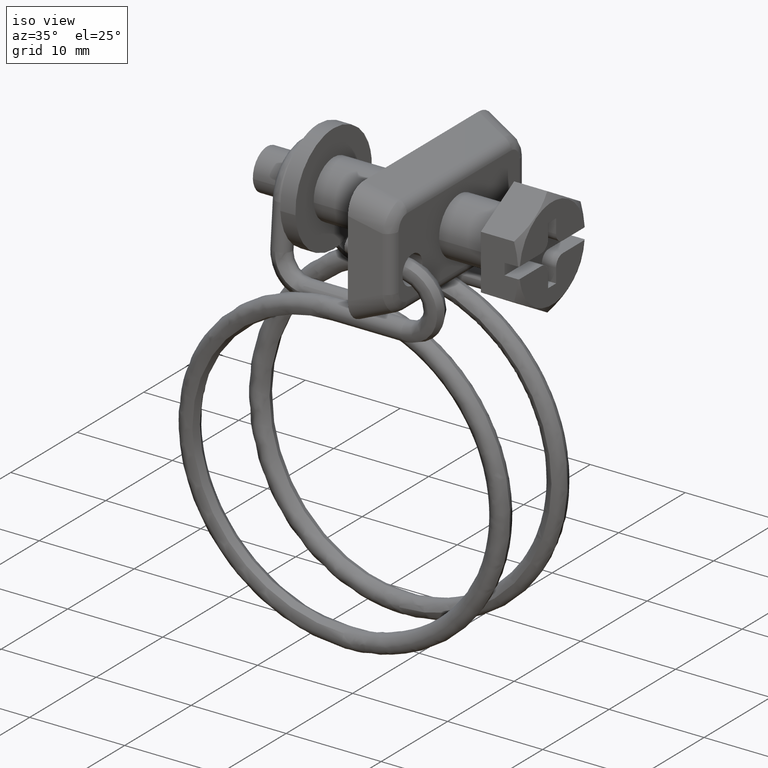
[diagram: clean part render]
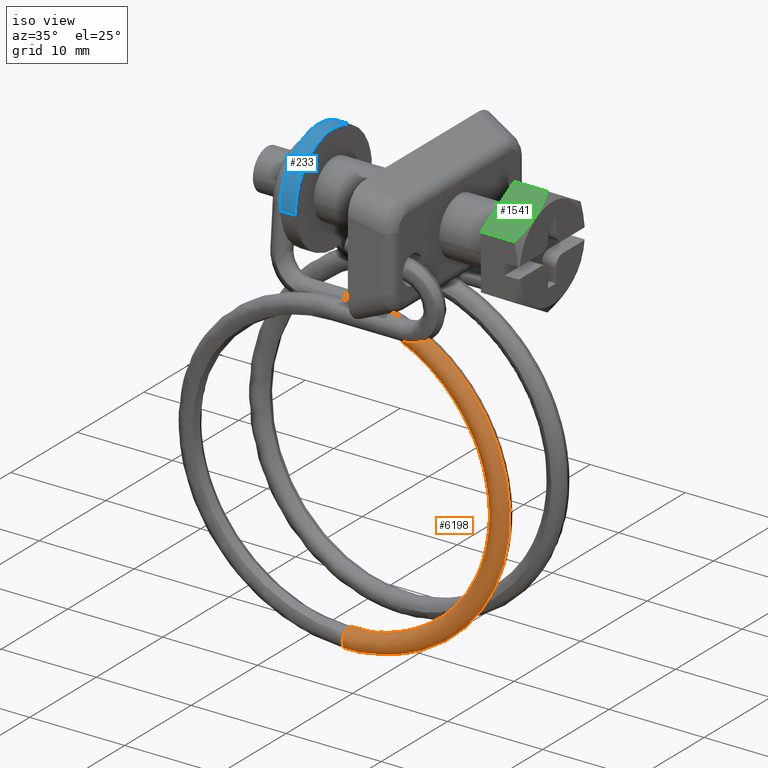
[diagram: same view with three faces highlighted in distinct colors, each labeled with its STEP entity id]
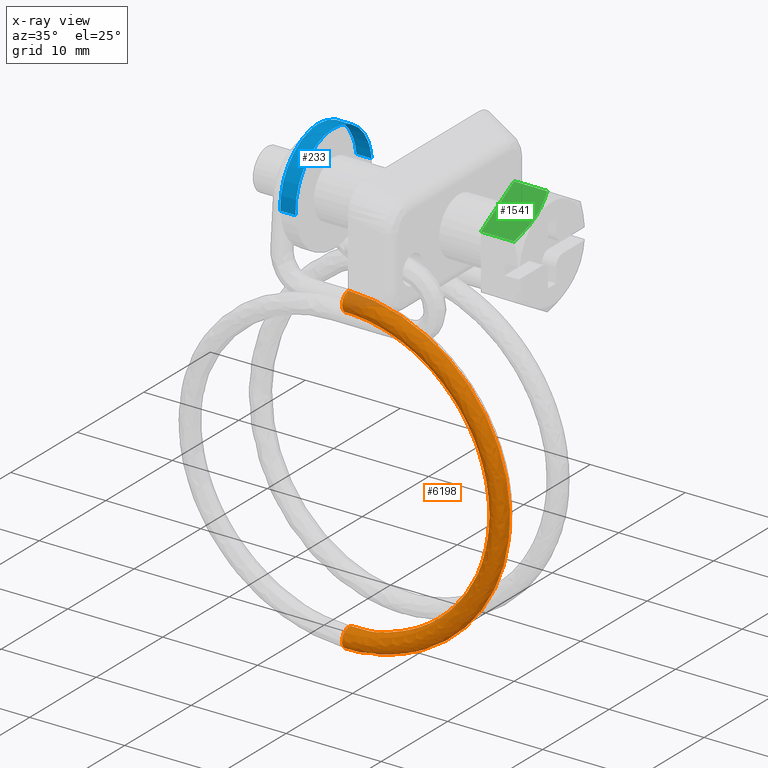
[diagram: x-ray of the same camera — body ghosted, the three highlighted faces saturated]
A machine part, iso view with three faces highlighted in distinct colors.
The next image is the same camera in x-ray (body ghosted, the three faces saturated) — at least one of them is partly hidden behind the body in this view.
Their STEP definitions:

[orange] entity #6198 — the highlighted face is a freeform B-spline surface patch.
#4757=CARTESIAN_POINT('',(-14.399997916668470,-4.300002000000000,-8.850001000000301));
#4758=VERTEX_POINT('',#4757);
#4759=CARTESIAN_POINT('',(-14.399997687572720,-5.060407965578165,-7.200552951688154));
#4760=VERTEX_POINT('',#4759);
#4761=CARTESIAN_POINT('',(-14.399997916668470,-4.300002000000000,-8.850001000000301));
#4762=CARTESIAN_POINT('',(-14.399997916668580,-5.300002000000001,-8.850001000000301));
#4763=CARTESIAN_POINT('',(-14.399997777779690,-5.300002000000000,-7.850001000000311));
#4764=CARTESIAN_POINT('',(-14.399997726540875,-5.300002000000000,-7.481081522918133));
#4765=CARTESIAN_POINT('',(-14.399997687572718,-5.060407965578166,-7.200552951688154));
#4773=(BOUNDED_CURVE()B_SPLINE_CURVE(2,(#4761,#4762,#4763,#4764,#4765),.UNSPECIFIED.,.F.,.U.)B_SPLINE_CURVE_WITH_KNOTS((3,2,3),(0.0,0.250000000000000,0.363143161342019),.UNSPECIFIED.)CURVE()GEOMETRIC_REPRESENTATION_ITEM()RATIONAL_B_SPLINE_CURVE((1.0,0.707106781186548,1.0,0.867444541151225,0.854871031640789))REPRESENTATION_ITEM(''));
#4774=EDGE_CURVE('',#4758,#4760,#4773,.T.);
#4830=CARTESIAN_POINT('',(-14.399997867980620,-3.539596034400177,-8.499449048330725));
#4831=VERTEX_POINT('',#4830);
#4837=CARTESIAN_POINT('',(-14.399997867980614,-3.539596034400176,-8.499449048330726));
#4838=CARTESIAN_POINT('',(-14.399997916668415,-3.838995685573063,-8.850001000000301));
#4839=CARTESIAN_POINT('',(-14.399997916668470,-4.300002000000000,-8.850001000000301));
#4847=(BOUNDED_CURVE()B_SPLINE_CURVE(2,(#4837,#4838,#4839),.UNSPECIFIED.,.F.,.U.)B_SPLINE_CURVE_WITH_KNOTS((3,3),(0.863143161349469,1.0),.UNSPECIFIED.)CURVE()GEOMETRIC_REPRESENTATION_ITEM()RATIONAL_B_SPLINE_CURVE((0.854871031639133,0.839662240044051,1.0))REPRESENTATION_ITEM(''));
#4848=EDGE_CURVE('',#4831,#4758,#4847,.T.);
#4871=CARTESIAN_POINT('',(-14.399997638877650,-4.312568040193890,-6.850079955800332));
#4872=VERTEX_POINT('',#4871);
#4873=CARTESIAN_POINT('',(-14.399997687572720,-5.060407965578166,-7.200552951688155));
#4874=CARTESIAN_POINT('',(-14.399997639680054,-4.765941928709835,-6.855777520302893));
#4875=CARTESIAN_POINT('',(-14.399997638877648,-4.312568040193890,-6.850079955800332));
#4883=(BOUNDED_CURVE()B_SPLINE_CURVE(2,(#4873,#4874,#4875),.UNSPECIFIED.,.F.,.U.)B_SPLINE_CURVE_WITH_KNOTS((3,3),(0.363143161342019,0.497784295812493),.UNSPECIFIED.)CURVE()GEOMETRIC_REPRESENTATION_ITEM()RATIONAL_B_SPLINE_CURVE((0.854871031640788,0.839908469479007,0.994854295392596))REPRESENTATION_ITEM(''));
#4884=EDGE_CURVE('',#4760,#4872,#4883,.T.);
#4901=CARTESIAN_POINT('',(-14.399997768017290,-3.302436326325196,-7.780267746055399));
#4902=VERTEX_POINT('',#4901);
#4916=CARTESIAN_POINT('',(-14.399997768017290,-3.302436326325196,-7.780267746055399));
#4917=CARTESIAN_POINT('',(-14.399997772930980,-3.300002000000000,-7.815091881747528));
#4918=CARTESIAN_POINT('',(-14.399997777779470,-3.300002000000000,-7.850001000000311));
#4919=CARTESIAN_POINT('',(-14.399997829018286,-3.300002000000000,-8.218920477110491));
#4920=CARTESIAN_POINT('',(-14.399997867980613,-3.539596034400177,-8.499449048330725));
#4928=(BOUNDED_CURVE()B_SPLINE_CURVE(2,(#4916,#4917,#4918,#4919,#4920),.UNSPECIFIED.,.F.,.U.)B_SPLINE_CURVE_WITH_KNOTS((3,2,3),(0.737833685718157,0.750000000000000,0.863143161349469),.UNSPECIFIED.)CURVE()GEOMETRIC_REPRESENTATION_ITEM()RATIONAL_B_SPLINE_CURVE((0.972879874659088,0.985746276195579,1.0,0.867444541142497,0.854871031639133))REPRESENTATION_ITEM(''));
#4929=EDGE_CURVE('',#4902,#4831,#4928,.T.);
#6070=CARTESIAN_POINT('',(-16.669655722496906,-3.302436322311034,-7.941355931714453));
#6071=CARTESIAN_POINT('',(1.669733196520374,-3.302436322311032,-5.324910670130045));
#6072=CARTESIAN_POINT('',(1.669733196520377,-3.302436322311033,-23.850001000000002));
#6073=CARTESIAN_POINT('',(1.669733196520381,-3.302436322311032,-42.375103440024269));
#6074=CARTESIAN_POINT('',(-16.669666017983559,-3.302436322311034,-39.758644599444942));
#6075=CARTESIAN_POINT('',(-16.665623397683881,-3.300440590111869,-7.969619612242979));
#6076=CARTESIAN_POINT('',(1.641183322958194,-3.300440590111871,-5.357822790087351));
#6077=CARTESIAN_POINT('',(1.641183322958197,-3.300440590111870,-23.850000999999999));
#6078=CARTESIAN_POINT('',(1.641183322958201,-3.300440590111871,-42.342191298551789));
#6079=CARTESIAN_POINT('',(-16.665633674879324,-3.300440590111870,-39.730380921525978));
#6080=CARTESIAN_POINT('',(-16.661581552091373,-3.300080955796185,-7.997950026549738));
#6081=CARTESIAN_POINT('',(1.612566039883342,-3.300080955796185,-5.390812619319354));
#6082=CARTESIAN_POINT('',(1.612566039883346,-3.300080955796184,-23.850000999999999));
#6083=CARTESIAN_POINT('',(1.612566039883349,-3.300080955796184,-42.309201447753793));
#6084=CARTESIAN_POINT('',(-16.661591810952423,-3.300080955796184,-39.702050509834947));
#6085=CARTESIAN_POINT('',(-16.520354781723235,-3.287514915912832,-8.987847543453903));
#6086=CARTESIAN_POINT('',(0.612644995679529,-3.287514915912832,-6.543515494972856));
#6087=CARTESIAN_POINT('',(0.612644995679531,-3.287514915912832,-23.850000999999999));
#6088=CARTESIAN_POINT('',(0.612644995679535,-3.287514915912831,-41.156497818559572));
#6089=CARTESIAN_POINT('',(-16.520364399959224,-3.287514915912831,-38.712153084327745));
#6090=CARTESIAN_POINT('',(-16.518579980363338,-4.287435960116648,-9.000287617347691));
#6091=CARTESIAN_POINT('',(0.600078955796178,-4.287435960116646,-6.558001549039905));
#6092=CARTESIAN_POINT('',(0.600078955796178,-4.287435960116647,-23.850000999999999));
#6093=CARTESIAN_POINT('',(0.600078955796182,-4.287435960116647,-41.142011755022764));
#6094=CARTESIAN_POINT('',(-16.518589590548569,-4.287435960116646,-38.699713011582531));
#6095=CARTESIAN_POINT('',(-16.516805179003434,-5.287357004320464,-9.012727691241480));
#6096=CARTESIAN_POINT('',(0.587512915912823,-5.287357004320461,-6.572487603106957));
#6097=CARTESIAN_POINT('',(0.587512915912825,-5.287357004320464,-23.850000999999999));
#6098=CARTESIAN_POINT('',(0.587512915912828,-5.287357004320462,-41.127525691485943));
#6099=CARTESIAN_POINT('',(-16.516814781137928,-5.287357004320464,-38.687272938837339));
#6100=CARTESIAN_POINT('',(-16.658031949371580,-5.299923044203815,-8.022830174337313));
#6101=CARTESIAN_POINT('',(1.587433960116639,-5.299923044203816,-5.419784727453450));
#6102=CARTESIAN_POINT('',(1.587433960116641,-5.299923044203815,-23.850000999999999));
#6103=CARTESIAN_POINT('',(1.587433960116645,-5.299923044203815,-42.280229320680156));
#6104=CARTESIAN_POINT('',(-16.658042192131109,-5.299923044203816,-39.677170364344541));
#6105=CARTESIAN_POINT('',(-16.799258719739722,-5.312489084087170,-7.032932657433150));
#6106=CARTESIAN_POINT('',(2.587355004320455,-5.312489084087168,-4.267081851799954));
#6107=CARTESIAN_POINT('',(2.587355004320455,-5.312489084087169,-23.850000999999999));
#6108=CARTESIAN_POINT('',(2.587355004320460,-5.312489084087168,-43.432932949874356));
#6109=CARTESIAN_POINT('',(-16.799269603124319,-5.312489084087168,-40.667067789851764));
#6110=CARTESIAN_POINT('',(-16.801033521099615,-4.312568039883353,-7.020492583539361));
#6111=CARTESIAN_POINT('',(2.599921044203808,-4.312568039883354,-4.252595797732905));
#6112=CARTESIAN_POINT('',(2.599921044203809,-4.312568039883353,-23.850000999999999));
#6113=CARTESIAN_POINT('',(2.599921044203814,-4.312568039883352,-43.447419013411185));
#6114=CARTESIAN_POINT('',(-16.801044412534971,-4.312568039883353,-40.679507862596957));
#6122=(BOUNDED_SURFACE()B_SPLINE_SURFACE(2,2,((#6070,#6075,#6080,#6085,#6090,#6095,#6100,#6105,#6110),(#6071,#6076,#6081,#6086,#6091,#6096,#6101,#6106,#6111),(#6072,#6077,#6082,#6087,#6092,#6097,#6102,#6107,#6112),(#6073,#6078,#6083,#6088,#6093,#6098,#6103,#6108,#6113),(#6074,#6079,#6084,#6089,#6094,#6099,#6104,#6109,#6114)),.UNSPECIFIED.,.F.,.F.,.U.)B_SPLINE_SURFACE_WITH_KNOTS((3,2,3),(3,2,2,2,3),(0.0,31.032020492675230,62.064054248852322),(0.0,0.066274106775721,1.723128356268102,3.379982605760483,5.036836855252863),.UNSPECIFIED.)GEOMETRIC_REPRESENTATION_ITEM()RATIONAL_B_SPLINE_SURFACE(((0.973182518610377,0.983913308810098,0.995577210233832,0.703979396551128,0.995577210233832,0.703979396551128,0.995577210233832,0.703979396551128,0.995577210233832),(0.639113891133382,0.646161075960820,0.653821058833677,0.462321304383862,0.653821058833677,0.462321304383862,0.653821058833677,0.462321304383862,0.653821058833677),(0.977505821353428,0.988284282420452,1.0,0.707106781186548,1.0,0.707106781186548,1.0,0.707106781186548,1.0),(0.639113746500131,0.646160929732772,0.653820910872153,0.462321199759265,0.653820910872153,0.462321199759265,0.653820910872153,0.462321199759265,0.653820910872153),(0.973182804181326,0.983913597529893,0.995577502376286,0.703979603127038,0.995577502376286,0.703979603127038,0.995577502376286,0.703979603127038,0.995577502376286)))REPRESENTATION_ITEM('')SURFACE());
#6123=CARTESIAN_POINT('',(-14.399999999892991,-3.302485887034676,-39.919730657945919));
#6124=VERTEX_POINT('',#6123);
#6125=CARTESIAN_POINT('',(-14.399999999998480,-4.300002000000005,-38.850000999999999));
#6126=VERTEX_POINT('',#6125);
#6127=CARTESIAN_POINT('',(-14.399999999892991,-3.302485887034676,-39.919730657945919));
#6128=CARTESIAN_POINT('',(-14.399999999894140,-3.300804581624162,-39.896535733551843));
#6129=CARTESIAN_POINT('',(-14.399999999895330,-3.299953531839379,-39.873276473134162));
#6130=CARTESIAN_POINT('',(-14.399999999910371,-3.299960596688532,-39.588204614319650));
#6131=CARTESIAN_POINT('',(-14.399999999929410,-3.407742631726004,-39.328016695221827));
#6132=CARTESIAN_POINT('',(-14.399999999967140,-3.778000607902757,-38.957775164691668));
#6133=CARTESIAN_POINT('',(-14.399999999985610,-4.038196562363259,-38.850001438668571));
#6134=CARTESIAN_POINT('',(-14.399999999998480,-4.300002000000005,-38.850000999999999));
#6135=B_SPLINE_CURVE_WITH_KNOTS('',3,(#6127,#6128,#6129,#6130,#6131,#6132,#6133,#6134),.UNSPECIFIED.,.F.,.U.,(4,2,2,4),(0.738888458188920,0.750000000000000,0.875000000000000,1.0),.UNSPECIFIED.);
#6136=EDGE_CURVE('',#6124,#6126,#6135,.T.);
#6137=ORIENTED_EDGE('',*,*,#6136,.T.);
#6138=CARTESIAN_POINT('',(-14.399999999998460,-5.028950059747670,-39.165464336768650));
#6139=VERTEX_POINT('',#6138);
#6140=CARTESIAN_POINT('',(-14.399999999998530,-4.300002000000001,-38.850000999999999));
#6141=CARTESIAN_POINT('',(-14.399999999998530,-4.561801387799149,-38.850000999999992));
#6142=CARTESIAN_POINT('',(-14.399999999998521,-4.821988658763281,-38.957774096390182));
#6143=CARTESIAN_POINT('',(-14.399999999998499,-5.014513639112485,-39.150299076739387));
#6144=CARTESIAN_POINT('',(-14.399999999998499,-5.021794740024235,-39.157824043823283));
#6145=CARTESIAN_POINT('',(-14.399999999998460,-5.028950059747670,-39.165464336768650));
#6146=B_SPLINE_CURVE_WITH_KNOTS('',3,(#6140,#6141,#6142,#6143,#6144,#6145),.UNSPECIFIED.,.F.,.U.,(4,2,4),(0.0,0.125000000000000,0.130000035807161),.UNSPECIFIED.);
#6147=EDGE_CURVE('',#6126,#6139,#6146,.T.);
#6148=ORIENTED_EDGE('',*,*,#6147,.T.);
#6149=CARTESIAN_POINT('',(-14.400007912308361,-4.312568988476939,-40.849920179125718));
#6150=VERTEX_POINT('',#6149);
#6151=CARTESIAN_POINT('',(-14.399999999998460,-5.028950059747670,-39.165464336768650));
#6152=CARTESIAN_POINT('',(-14.400000438881319,-5.200678374992768,-39.348832154145562));
#6153=CARTESIAN_POINT('',(-14.400001264671030,-5.300002003892968,-39.598673958767783));
#6154=CARTESIAN_POINT('',(-14.400003305779849,-5.300002010175993,-40.111801161684639));
#6155=CARTESIAN_POINT('',(-14.400004523070450,-5.192228917532920,-40.371988717617278));
#6156=CARTESIAN_POINT('',(-14.400006605351789,-4.824951103821450,-40.739267025201869));
#6157=CARTESIAN_POINT('',(-14.400007463153150,-4.570109593010634,-40.846533615082841));
#6158=CARTESIAN_POINT('',(-14.400007912308361,-4.312568988476939,-40.849920179125718));
#6159=B_SPLINE_CURVE_WITH_KNOTS('',3,(#6151,#6152,#6153,#6154,#6155,#6156,#6157,#6158),.UNSPECIFIED.,.F.,.U.,(4,2,2,4),(0.130000035807161,0.250000000000000,0.375000000000000,0.497999660513321),.UNSPECIFIED.);
#6160=EDGE_CURVE('',#6139,#6150,#6159,.T.);
#6161=ORIENTED_EDGE('',*,*,#6160,.T.);
#6162=CARTESIAN_POINT('',(-14.399997638877648,-4.312568040193890,-6.850079955800332));
#6163=CARTESIAN_POINT('',(2.599921044179794,-4.312568040193811,-6.850082316946522));
#6164=CARTESIAN_POINT('',(2.599921044192235,-4.312568514335271,-23.850000067464141));
#6165=CARTESIAN_POINT('',(2.599921044204679,-4.312568988477016,-40.849928091438464));
#6166=CARTESIAN_POINT('',(-14.400007912308364,-4.312568988476939,-40.849920179125725));
#6174=(BOUNDED_CURVE()B_SPLINE_CURVE(2,(#6162,#6163,#6164,#6165,#6166),.UNSPECIFIED.,.F.,.U.)B_SPLINE_CURVE_WITH_KNOTS((3,2,3),(-3.806731548411477,-2.0,-0.193267703383253),.UNSPECIFIED.)CURVE()GEOMETRIC_REPRESENTATION_ITEM()RATIONAL_B_SPLINE_CURVE((0.939171315860003,0.685263250985713,1.0,0.685263120646652,0.939171526157367))REPRESENTATION_ITEM(''));
#6175=EDGE_CURVE('',#4872,#6150,#6174,.T.);
#6176=ORIENTED_EDGE('',*,*,#6175,.F.);
#6177=ORIENTED_EDGE('',*,*,#4884,.F.);
#6178=ORIENTED_EDGE('',*,*,#4774,.F.);
#6179=ORIENTED_EDGE('',*,*,#4848,.F.);
#6180=ORIENTED_EDGE('',*,*,#4929,.F.);
#6181=CARTESIAN_POINT('',(-14.399997768017288,-3.302436326325196,-7.780267746055399));
#6182=CARTESIAN_POINT('',(1.669733251498420,-3.302436326326918,-7.780269978114689));
#6183=CARTESIAN_POINT('',(1.669733251536928,-3.302461106678216,-23.849999202000713));
#6184=CARTESIAN_POINT('',(1.669733251575437,-3.302485887032955,-39.919730657839054));
#6185=CARTESIAN_POINT('',(-14.399999999892998,-3.302485887034676,-39.919730657945919));
#6193=(BOUNDED_CURVE()B_SPLINE_CURVE(2,(#6181,#6182,#6183,#6184,#6185),.UNSPECIFIED.,.F.,.U.)B_SPLINE_CURVE_WITH_KNOTS((3,2,3),(-3.806731548403108,-2.0,-0.193268279636905),.UNSPECIFIED.)CURVE()GEOMETRIC_REPRESENTATION_ITEM()RATIONAL_B_SPLINE_CURVE((0.918045409191246,0.669848802911687,0.977505800795127,0.669848773629698,0.918045456436660))REPRESENTATION_ITEM(''));
#6194=EDGE_CURVE('',#4902,#6124,#6193,.T.);
#6195=ORIENTED_EDGE('',*,*,#6194,.T.);
#6196=EDGE_LOOP('',(#6137,#6148,#6161,#6176,#6177,#6178,#6179,#6180,#6195));
#6197=FACE_OUTER_BOUND('',#6196,.T.);
#6198=ADVANCED_FACE('',(#6197),#6122,.T.);

[blue] entity #233 — the highlighted face is a freeform B-spline surface patch.
#70=CARTESIAN_POINT('',(-20.599999999999842,5.709805313408426,0.678692333059049));
#71=VERTEX_POINT('',#70);
#89=CARTESIAN_POINT('',(-19.0,5.709805306795400,0.678692388694485));
#90=VERTEX_POINT('',#89);
#91=CARTESIAN_POINT('',(-19.0,5.709805306795400,0.678692388694485));
#92=CARTESIAN_POINT('',(-20.599999999999842,5.709805313408426,0.678692333059049));
#93=QUASI_UNIFORM_CURVE('',1,(#91,#92),.UNSPECIFIED.,.F.,.U.);
#94=EDGE_CURVE('',#90,#71,#93,.T.);
#113=CARTESIAN_POINT('',(-19.0,-5.739275733253351,-0.351018600047657));
#114=VERTEX_POINT('',#113);
#128=CARTESIAN_POINT('',(-20.600000000000541,-5.739275741286570,-0.351018468697740));
#129=VERTEX_POINT('',#128);
#130=CARTESIAN_POINT('',(-19.0,-5.739275733253351,-0.351018600047657));
#131=CARTESIAN_POINT('',(-20.600000000000541,-5.739275741286570,-0.351018468697740));
#132=QUASI_UNIFORM_CURVE('',1,(#130,#131),.UNSPECIFIED.,.F.,.U.);
#133=EDGE_CURVE('',#114,#129,#132,.T.);
#151=CARTESIAN_POINT('',(-18.960000000000001,-5.739275090925814,-0.351029102325433));
#152=CARTESIAN_POINT('',(-18.959999999999997,-6.090304193251246,5.388245988600382));
#153=CARTESIAN_POINT('',(-18.960000000000001,-0.351029102325433,5.739275090925814));
#154=CARTESIAN_POINT('',(-18.959999999999994,5.068875072327201,6.070770631212118));
#155=CARTESIAN_POINT('',(-18.959999999999997,5.709804776591160,0.678696849276371));
#156=CARTESIAN_POINT('',(-20.641000000000009,-5.739275090925814,-0.351029102325433));
#157=CARTESIAN_POINT('',(-20.641000000000002,-6.090304193251246,5.388245988600382));
#158=CARTESIAN_POINT('',(-20.641000000000009,-0.351029102325433,5.739275090925814));
#159=CARTESIAN_POINT('',(-20.641000000000002,5.068875072327201,6.070770631212118));
#160=CARTESIAN_POINT('',(-20.641000000000009,5.709804776591160,0.678696849276371));
#168=(BOUNDED_SURFACE()B_SPLINE_SURFACE(2,1,((#151,#156),(#152,#157),(#153,#158),(#154,#159),(#155,#160)),.UNSPECIFIED.,.F.,.F.,.U.)B_SPLINE_SURFACE_WITH_KNOTS((3,2,3),(2,2),(0.0,9.526911934581319,18.672747391779389),(0.0,1.0),.UNSPECIFIED.)GEOMETRIC_REPRESENTATION_ITEM()RATIONAL_B_SPLINE_SURFACE(((1.0,1.0),(0.707106781186548,0.707106781186548),(1.0,1.0),(0.718822509939086,0.718822509939086),(0.977505800795127,0.977505800795127)))REPRESENTATION_ITEM('')SURFACE());
#169=CARTESIAN_POINT('',(-20.600000000000001,0.0,5.750000000000080));
#170=VERTEX_POINT('',#169);
#171=CARTESIAN_POINT('',(-20.600000000000001,0.0,5.750000000000080));
#172=CARTESIAN_POINT('',(-20.599999999999998,5.107007592084453,5.750000000000079));
#173=CARTESIAN_POINT('',(-20.599999999999834,5.709805313408426,0.678692333059049));
#181=(BOUNDED_CURVE()B_SPLINE_CURVE(2,(#171,#172,#173),.UNSPECIFIED.,.F.,.U.)B_SPLINE_CURVE_WITH_KNOTS((3,3),(0.0,0.229562607190169),.UNSPECIFIED.)CURVE()GEOMETRIC_REPRESENTATION_ITEM()RATIONAL_B_SPLINE_CURVE((1.0,0.731050676243453,0.956027016195592))REPRESENTATION_ITEM(''));
#182=EDGE_CURVE('',#170,#71,#181,.T.);
#183=ORIENTED_EDGE('',*,*,#182,.F.);
#184=CARTESIAN_POINT('',(-20.600000000000538,-5.739275741286570,-0.351018468697740));
#185=CARTESIAN_POINT('',(-20.600000000000001,-5.750000000000080,-0.175673057245969));
#186=CARTESIAN_POINT('',(-20.600000000000001,-5.750000000000080,0.0));
#187=CARTESIAN_POINT('',(-20.600000000000005,-5.750000000000080,5.750000000000080));
#188=CARTESIAN_POINT('',(-20.600000000000001,0.0,5.750000000000080));
#196=(BOUNDED_CURVE()B_SPLINE_CURVE(2,(#184,#185,#186,#187,#188),.UNSPECIFIED.,.F.,.U.)B_SPLINE_CURVE_WITH_KNOTS((3,2,3),(0.739333281933694,0.750000000000000,1.0),.UNSPECIFIED.)CURVE()GEOMETRIC_REPRESENTATION_ITEM()RATIONAL_B_SPLINE_CURVE((0.976072726834384,0.987503162445536,1.0,0.707106781186547,1.0))REPRESENTATION_ITEM(''));
#197=EDGE_CURVE('',#129,#170,#196,.T.);
#198=ORIENTED_EDGE('',*,*,#197,.F.);
#199=ORIENTED_EDGE('',*,*,#133,.F.);
#200=CARTESIAN_POINT('',(-19.0,0.0,5.750000000000080));
#201=VERTEX_POINT('',#200);
#202=CARTESIAN_POINT('',(-19.0,-5.739275733253351,-0.351018600047657));
#203=CARTESIAN_POINT('',(-19.0,-5.750000000000080,-0.175673123105054));
#204=CARTESIAN_POINT('',(-19.0,-5.750000000000080,0.0));
#205=CARTESIAN_POINT('',(-18.999999999999996,-5.750000000000080,5.750000000000080));
#206=CARTESIAN_POINT('',(-19.0,0.0,5.750000000000080));
#214=(BOUNDED_CURVE()B_SPLINE_CURVE(2,(#202,#203,#204,#205,#206),.UNSPECIFIED.,.F.,.U.)B_SPLINE_CURVE_WITH_KNOTS((3,2,3),(0.739333277984760,0.750000000000000,1.0),.UNSPECIFIED.)CURVE()GEOMETRIC_REPRESENTATION_ITEM()RATIONAL_B_SPLINE_CURVE((0.976072718371044,0.987503157819073,1.0,0.707106781186547,1.0))REPRESENTATION_ITEM(''));
#215=EDGE_CURVE('',#114,#201,#214,.T.);
#216=ORIENTED_EDGE('',*,*,#215,.T.);
#217=CARTESIAN_POINT('',(-19.0,0.0,5.750000000000080));
#218=CARTESIAN_POINT('',(-18.999999999999996,5.107007541972285,5.750000000000080));
#219=CARTESIAN_POINT('',(-19.0,5.709805306795400,0.678692388694485));
#227=(BOUNDED_CURVE()B_SPLINE_CURVE(2,(#217,#218,#219),.UNSPECIFIED.,.F.,.U.)B_SPLINE_CURVE_WITH_KNOTS((3,3),(0.0,0.229562605543428),.UNSPECIFIED.)CURVE()GEOMETRIC_REPRESENTATION_ITEM()RATIONAL_B_SPLINE_CURVE((1.0,0.731050678172730,0.956027012967908))REPRESENTATION_ITEM(''));
#228=EDGE_CURVE('',#201,#90,#227,.T.);
#229=ORIENTED_EDGE('',*,*,#228,.T.);
#230=ORIENTED_EDGE('',*,*,#94,.T.);
#231=EDGE_LOOP('',(#183,#198,#199,#216,#229,#230));
#232=FACE_OUTER_BOUND('',#231,.T.);
#233=ADVANCED_FACE('',(#232),#168,.T.);

[green] entity #1541 — the highlighted face is a freeform B-spline surface patch.
#1325=CARTESIAN_POINT('',(0.0,-5.000000000000110,2.886751000000115));
#1326=VERTEX_POINT('',#1325);
#1327=CARTESIAN_POINT('',(0.0,0.0,5.773503000000120));
#1328=VERTEX_POINT('',#1327);
#1329=CARTESIAN_POINT('',(0.0,-5.000000000000110,2.886751000000115));
#1330=CARTESIAN_POINT('',(0.0,0.0,5.773503000000120));
#1331=QUASI_UNIFORM_CURVE('',1,(#1329,#1330),.UNSPECIFIED.,.F.,.U.);
#1332=EDGE_CURVE('',#1326,#1328,#1331,.T.);
#1382=CARTESIAN_POINT('',(3.495681814373700,-5.000000000000110,2.886751000000115));
#1383=VERTEX_POINT('',#1382);
#1395=CARTESIAN_POINT('',(3.495681814373700,-5.000000000000110,2.886751000000115));
#1396=CARTESIAN_POINT('',(0.0,-5.000000000000110,2.886751000000115));
#1397=QUASI_UNIFORM_CURVE('',1,(#1395,#1396),.UNSPECIFIED.,.F.,.U.);
#1398=EDGE_CURVE('',#1383,#1326,#1397,.T.);
#1481=CARTESIAN_POINT('',(3.495681536623325,6.103433E-016,5.773503000000120));
#1482=VERTEX_POINT('',#1481);
#1504=CARTESIAN_POINT('',(3.495681536623325,6.103433E-016,5.773503000000120));
#1505=CARTESIAN_POINT('',(0.0,0.0,5.773503000000120));
#1506=QUASI_UNIFORM_CURVE('',1,(#1504,#1505),.UNSPECIFIED.,.F.,.U.);
#1507=EDGE_CURVE('',#1482,#1328,#1506,.T.);
#1512=CARTESIAN_POINT('',(-0.196916070453669,0.249750831026995,5.917694692243601));
#1513=CARTESIAN_POINT('',(-0.196916070453669,-5.249749710802925,2.742556954518055));
#1514=CARTESIAN_POINT('',(4.139180001909966,0.249750831026995,5.917694692243601));
#1515=CARTESIAN_POINT('',(4.139180001909966,-5.249749710802925,2.742556954518055));
#1516=B_SPLINE_SURFACE_WITH_KNOTS('',1,1,((#1512,#1514),(#1513,#1515)),.UNSPECIFIED.,.F.,.F.,.U.,(2,2),(2,2),(0.0,6.350276046213776),(0.0,4.336096072363636),.UNSPECIFIED.);
#1517=CARTESIAN_POINT('',(3.495681536623325,6.103433E-016,5.773503000000120));
#1518=CARTESIAN_POINT('',(3.631749038599125,-0.408202285038183,5.537827247452418));
#1519=CARTESIAN_POINT('',(3.743893413915199,-0.819380890193874,5.300433115294342));
#1520=CARTESIAN_POINT('',(3.860410759078715,-1.442580792549924,4.940628402389121));
#1521=CARTESIAN_POINT('',(3.890612672274843,-1.651388663478873,4.820073094585147));
#1522=CARTESIAN_POINT('',(3.931468634914104,-2.071436390961804,4.577558371103793));
#1523=CARTESIAN_POINT('',(3.942105792498638,-2.282678349062935,4.455597742097323));
#1524=CARTESIAN_POINT('',(3.942340228202794,-2.601497202100163,4.271527549768743));
#1525=CARTESIAN_POINT('',(3.939790267492717,-2.708308700746892,4.209859888300455));
#1526=CARTESIAN_POINT('',(3.929516157872345,-2.920962069454457,4.087084380815796));
#1527=CARTESIAN_POINT('',(3.921803877302504,-3.026919334326902,4.025909911558786));
#1528=CARTESIAN_POINT('',(3.891275711682841,-3.343730833925420,3.842998665540987));
#1529=CARTESIAN_POINT('',(3.861051222392978,-3.553522294746899,3.721875481719122));
#1530=CARTESIAN_POINT('',(3.744340626382618,-4.179161617348235,3.360662368559519));
#1531=CARTESIAN_POINT('',(3.631918845932657,-4.591288973032123,3.122720474904489));
#1532=CARTESIAN_POINT('',(3.495681814373700,-5.000000000000110,2.886751000000115));
#1533=B_SPLINE_CURVE_WITH_KNOTS('',3,(#1517,#1518,#1519,#1520,#1521,#1522,#1523,#1524,#1525,#1526,#1527,#1528,#1529,#1530,#1531,#1532),.UNSPECIFIED.,.F.,.U.,(4,2,2,2,2,2,2,4),(0.0,0.250000000000000,0.375000000000000,0.500000000000001,0.562500000000001,0.625000000000001,0.750000000000000,1.0),.UNSPECIFIED.);
#1534=EDGE_CURVE('',#1482,#1383,#1533,.T.);
#1535=ORIENTED_EDGE('',*,*,#1534,.F.);
#1536=ORIENTED_EDGE('',*,*,#1507,.T.);
#1537=ORIENTED_EDGE('',*,*,#1332,.F.);
#1538=ORIENTED_EDGE('',*,*,#1398,.F.);
#1539=EDGE_LOOP('',(#1535,#1536,#1537,#1538));
#1540=FACE_OUTER_BOUND('',#1539,.T.);
#1541=ADVANCED_FACE('',(#1540),#1516,.T.);